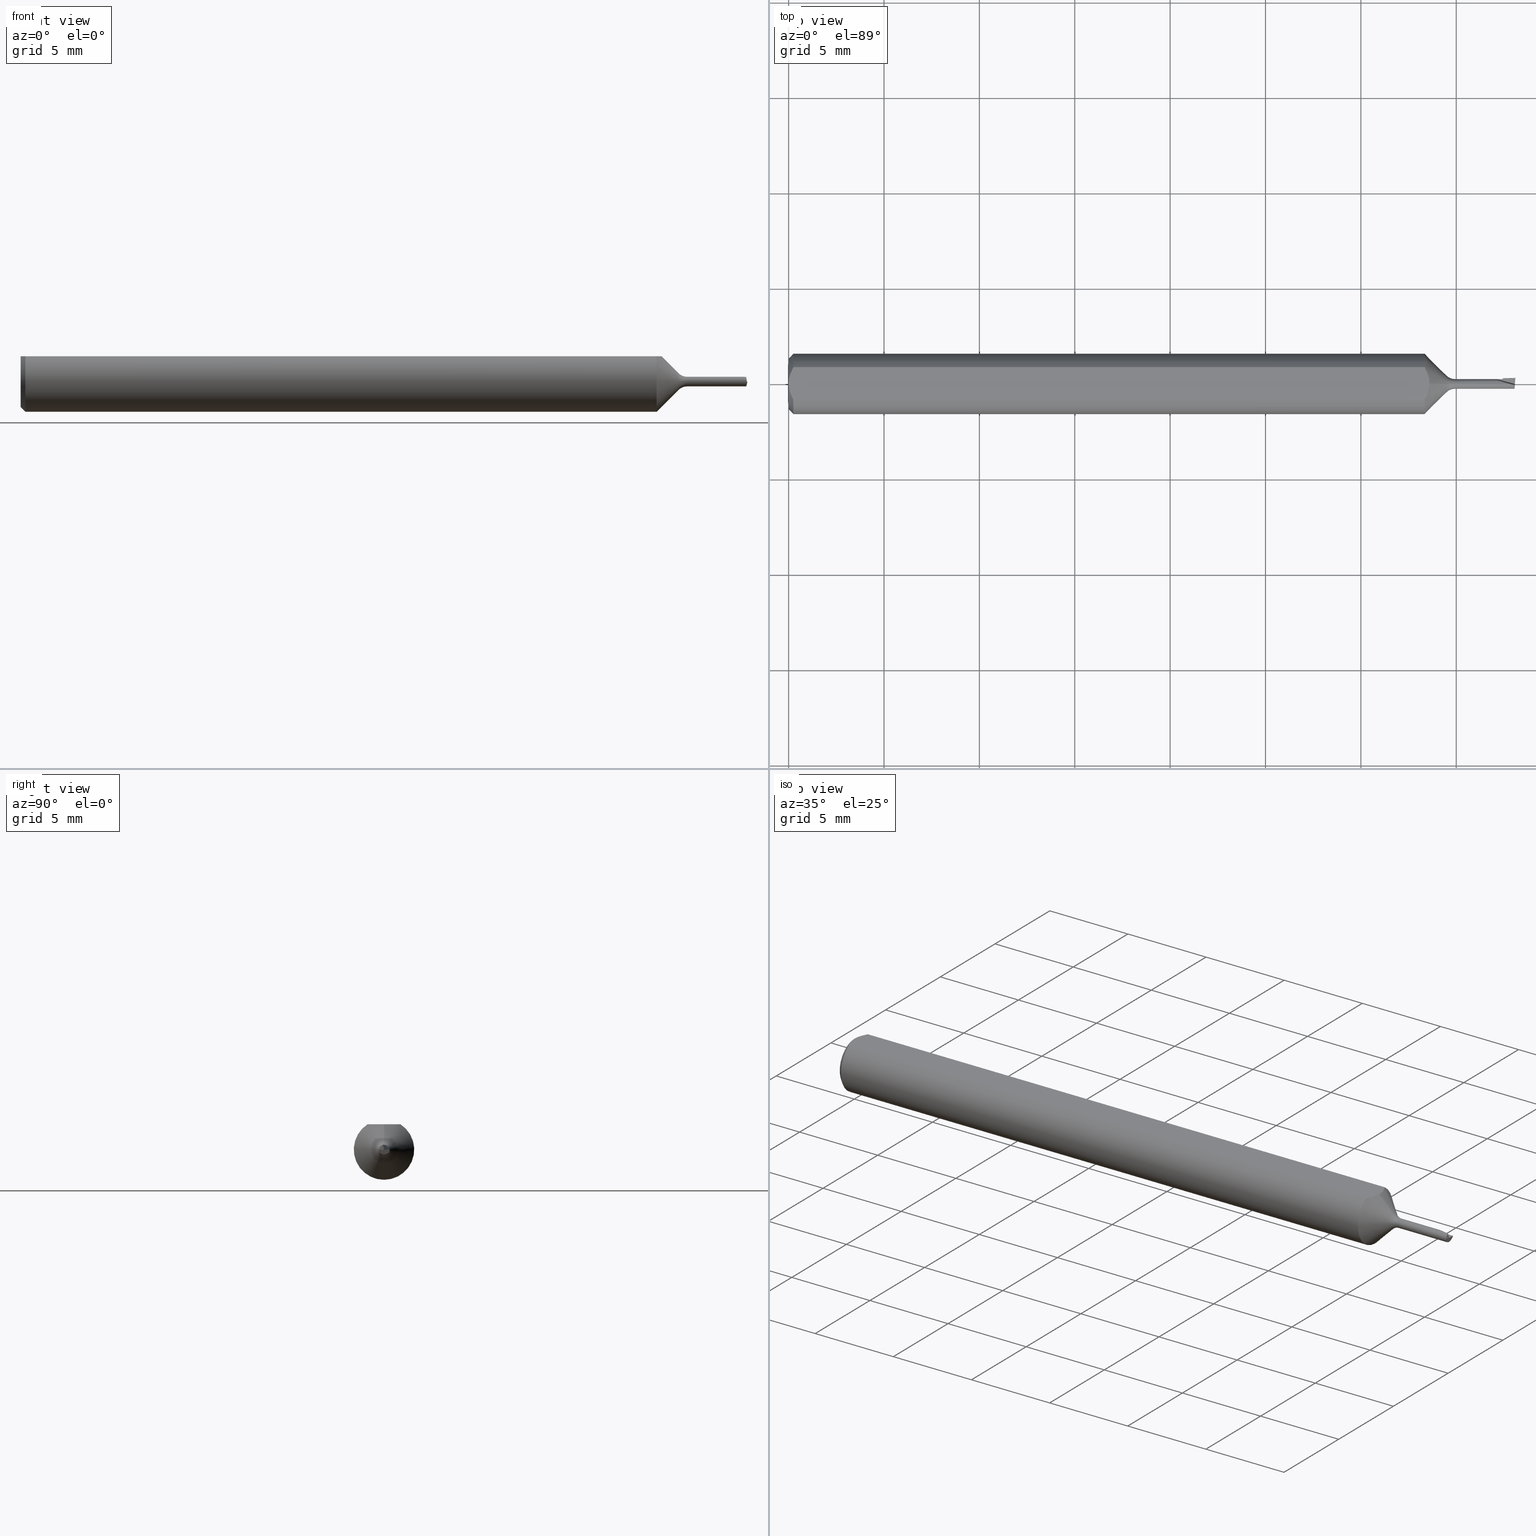
[diagram: canonical four-view strip — front | top / right | iso, engineering-drawing reading convention]
A machine part, canonical four-view strip (front | top / right | iso — engineering-drawing reading convention). The complete STEP part file that produces these views, byte-faithful:
ISO-10303-21;
HEADER;
FILE_DESCRIPTION (( 'STEP AP203' ),
    '1' );
FILE_NAME ('210010-MB025125.STEP',
    '2025-01-28T23:26:11',
    ( '' ),
    ( '' ),
    'SwSTEP 2.0',
    'SolidWorks 2024',
    '' );
FILE_SCHEMA (( 'CONFIG_CONTROL_DESIGN' ));
ENDSEC;

DATA;
#1 = FACE_OUTER_BOUND ( 'NONE', #426, .T. ) ;
#2 = CARTESIAN_POINT ( 'NONE',  ( 1.315496486667928844, 0.02862699489997218988, 0.05235000000000001458 ) ) ;
#3 = ORIENTED_EDGE ( 'NONE', *, *, #642, .T. ) ;
#4 = APPROVAL_STATUS ( 'not_yet_approved' ) ;
#5 = CARTESIAN_POINT ( 'NONE',  ( 1.375355339059327386, 0.000000000000000000, 0.000000000000000000 ) ) ;
#6 = DIRECTION ( 'NONE',  ( 0.000000000000000000, 0.000000000000000000, 1.000000000000000000 ) ) ;
#7 = ORIENTED_EDGE ( 'NONE', *, *, #299, .T. ) ;
#8 = CARTESIAN_POINT ( 'NONE',  ( 1.497349205165467767, -0.009999999999999967248, 0.004836342046113583856 ) ) ;
#9 = CARTESIAN_POINT ( 'NONE',  ( 0.009999999999999890921, 0.03386738844375217911, 0.05235000000000001458 ) ) ;
#10 = CARTESIAN_POINT ( 'NONE',  ( 1.312650000000000317, -0.03386738844375220686, 0.05235000000000000070 ) ) ;
#11 = FACE_OUTER_BOUND ( 'NONE', #289, .T. ) ;
#12 = VERTEX_POINT ( 'NONE', #434 ) ;
#13 = CC_DESIGN_PERSON_AND_ORGANIZATION_ASSIGNMENT ( #422, #379, ( #451 ) ) ;
#14 = DIRECTION ( 'NONE',  ( 0.1396943646708783127, 0.000000000000000000, 0.9901946699913101169 ) ) ;
#15 = DIRECTION ( 'NONE',  ( -1.000000000000000000, -0.000000000000000000, -0.000000000000000000 ) ) ;
#16 = DIRECTION ( 'NONE',  ( -1.000000000000000000, -0.000000000000000000, -0.000000000000000000 ) ) ;
#17 = ORIENTED_EDGE ( 'NONE', *, *, #626, .T. ) ;
#18 = CARTESIAN_POINT ( 'NONE',  ( 1.474000000000000199, 0.01181916603920113266, -1.428629915889650824E-18 ) ) ;
#19 = EDGE_CURVE ( 'NONE', #210, #480, #233, .T. ) ;
#20 = VECTOR ( 'NONE', #687, 39.37007874015748854 ) ;
#21 = ORIENTED_EDGE ( 'NONE', *, *, #619, .T. ) ;
#22 = CARTESIAN_POINT ( 'NONE',  ( 0.009999999999999890921, 0.03386738844375217911, 0.05235000000000001458 ) ) ;
#23 = EDGE_LOOP ( 'NONE', ( #584, #262, #693, #394, #237, #621 ) ) ;
#24 = DIRECTION ( 'NONE',  ( 0.000000000000000000, -0.4695970100586611129, -0.8828808799288643261 ) ) ;
#25 = CARTESIAN_POINT ( 'NONE',  ( 0.000000000000000000, 0.000000000000000000, 0.000000000000000000 ) ) ;
#26 = VECTOR ( 'NONE', #327, 39.37007874015748143 ) ;
#27 = ORIENTED_EDGE ( 'NONE', *, *, #299, .F. ) ;
#28 = DIRECTION ( 'NONE',  ( 0.9659258262890716429, -0.2588190451025078054, -0.000000000000000000 ) ) ;
#29 = ADVANCED_FACE ( 'NONE', ( #176 ), #53, .T. ) ;
#30 = CIRCLE ( 'NONE', #212, 0.01000000000000000021 ) ;
#31 = APPROVAL_PERSON_ORGANIZATION ( #637, #509, #473 ) ;
#32 = FACE_OUTER_BOUND ( 'NONE', #100, .T. ) ;
#33 = VERTEX_POINT ( 'NONE', #378 ) ;
#34 = LINE ( 'NONE', #139, #485 ) ;
#35 = CC_DESIGN_PERSON_AND_ORGANIZATION_ASSIGNMENT ( #268, #690, ( #101 ) ) ;
#36 = CARTESIAN_POINT ( 'NONE',  ( 1.357677669529663733, 0.000000000000000000, 0.000000000000000000 ) ) ;
#37 = ORIENTED_EDGE ( 'NONE', *, *, #177, .T. ) ;
#38 = APPLICATION_CONTEXT ( 'configuration controlled 3d designs of mechanical parts and assemblies' ) ;
#39 = DIRECTION ( 'NONE',  ( 0.000000000000000000, 0.000000000000000000, 1.000000000000000000 ) ) ;
#40 = DIRECTION ( 'NONE',  ( -1.000000000000000000, -0.000000000000000000, -0.000000000000000000 ) ) ;
#41 = ORIENTED_EDGE ( 'NONE', *, *, #116, .T. ) ;
#42 = DATE_AND_TIME ( #529, #124 ) ;
#43 = AXIS2_PLACEMENT_3D ( 'NONE', #66, #433, #115 ) ;
#44 = CARTESIAN_POINT ( 'NONE',  ( 1.317985229763168231, -0.02321262084120600047, 0.05235000000000001458 ) ) ;
#45 = EDGE_CURVE ( 'NONE', #618, #501, #60, .T. ) ;
#46 = ORIENTED_EDGE ( 'NONE', *, *, #668, .T. ) ;
#47 = PERSON_AND_ORGANIZATION ( #88, #634 ) ;
#48 = FACE_OUTER_BOUND ( 'NONE', #146, .T. ) ;
#49 = ORIENTED_EDGE ( 'NONE', *, *, #439, .T. ) ;
#50 = APPLICATION_PROTOCOL_DEFINITION ( 'international standard', 'config_control_design', 1994, #445 ) ;
#51 = DIRECTION ( 'NONE',  ( 0.000000000000000000, 0.000000000000000000, -1.000000000000000000 ) ) ;
#52 = ORIENTED_EDGE ( 'NONE', *, *, #240, .T. ) ;
#53 = CONICAL_SURFACE ( 'NONE', #570, 0.01732233047033639867, 0.7853981633974508325 ) ;
#54 = EDGE_CURVE ( 'NONE', #410, #135, #683, .T. ) ;
#55 = CARTESIAN_POINT ( 'NONE',  ( 1.475064240996841747, 0.009719467379827602393, -0.003999999999999994012 ) ) ;
#56 = ADVANCED_FACE ( 'NONE', ( #120 ), #386, .F. ) ;
#57 = AXIS2_PLACEMENT_3D ( 'NONE', #429, #648, #270 ) ;
#58 = CARTESIAN_POINT ( 'NONE',  ( 1.494346893718513147, -0.001537992003958231924, 0.009911099520036877747 ) ) ;
#59 =( NAMED_UNIT ( * ) PLANE_ANGLE_UNIT ( ) SI_UNIT ( $, .RADIAN. ) );
#60 =( BOUNDED_CURVE ( )  B_SPLINE_CURVE ( 3, ( #385, #58, #655, #231 ),
 .UNSPECIFIED., .F., .F. ) 
 B_SPLINE_CURVE_WITH_KNOTS ( ( 4, 4 ),
 ( 4.752031574225333621, 4.982986395506907584 ),
 .UNSPECIFIED. ) 
 CURVE ( )  GEOMETRIC_REPRESENTATION_ITEM ( )  RATIONAL_B_SPLINE_CURVE ( ( 1.000000000000000000, 0.9955599265456920310, 0.9955599265456920310, 1.000000000000000000 ) ) 
 REPRESENTATION_ITEM ( '' )  );
#61 = CIRCLE ( 'NONE', #613, 0.05235000000000033377 ) ;
#62 = CARTESIAN_POINT ( 'NONE',  ( 0.000000000000000000, -0.03386738844375220686, 0.05235000000000000070 ) ) ;
#63 = CARTESIAN_POINT ( 'NONE',  ( 1.357677669529663733, 0.000000000000000000, 0.000000000000000000 ) ) ;
#64 = CARTESIAN_POINT ( 'NONE',  ( 1.497332805726873994, -0.002289070968673543108, 0.009734482734094100642 ) ) ;
#65 = CARTESIAN_POINT ( 'NONE',  ( 1.375355339059327386, 0.000000000000000000, 0.000000000000000000 ) ) ;
#66 = CARTESIAN_POINT ( 'NONE',  ( 1.357677669529663733, 0.000000000000000000, 0.000000000000000000 ) ) ;
#67 = FACE_OUTER_BOUND ( 'NONE', #79, .T. ) ;
#68 = AXIS2_PLACEMENT_3D ( 'NONE', #71, #167, #332 ) ;
#69 = ADVANCED_FACE ( 'NONE', ( #67 ), #444, .T. ) ;
#70 = AXIS2_PLACEMENT_3D ( 'NONE', #140, #40, #530 ) ;
#71 = CARTESIAN_POINT ( 'NONE',  ( 1.500000000000000222, 0.06235000000000000264, 0.05235000000000001458 ) ) ;
#72 = CARTESIAN_POINT ( 'NONE',  ( -1.099542139246802830E-15, 0.005954997531773979953, 0.05235000000000002152 ) ) ;
#73 = PLANE ( 'NONE',  #691 ) ;
#74 = LINE ( 'NONE', #238, #121 ) ;
#75 = EDGE_CURVE ( 'NONE', #480, #406, #555, .T. ) ;
#76 = DIRECTION ( 'NONE',  ( 3.169619151431608402E-17, 1.182917971378675018E-16, -1.000000000000000000 ) ) ;
#77 = ORIENTED_EDGE ( 'NONE', *, *, #148, .F. ) ;
#78 = DIRECTION ( 'NONE',  ( 0.01228933283106314021, -0.4693106866066366623, -0.8829475928589275435 ) ) ;
#79 = EDGE_LOOP ( 'NONE', ( #627, #117, #563, #91 ) ) ;
#80 = CARTESIAN_POINT ( 'NONE',  ( 1.497879924029892118, 0.003420201433256736361, -0.009396926207859094410 ) ) ;
#81 = ORIENTED_EDGE ( 'NONE', *, *, #169, .F. ) ;
#82 = DIRECTION ( 'NONE',  ( -0.7071067811865457964, 0.000000000000000000, 0.7071067811865493491 ) ) ;
#83 = DIRECTION ( 'NONE',  ( 0.1396943646708921627, 0.000000000000000000, -0.9901946699913082295 ) ) ;
#84 = ORIENTED_EDGE ( 'NONE', *, *, #395, .T. ) ;
#85 = FACE_OUTER_BOUND ( 'NONE', #681, .T. ) ;
#86 = AXIS2_PLACEMENT_3D ( 'NONE', #377, #651, #381 ) ;
#87 = VECTOR ( 'NONE', #78, 39.37007874015748143 ) ;
#88 = PERSON ( 'UNSPECIFIED', 'UNSPECIFIED', 'UNSPECIFIED', ('UNSPECIFIED'), ('UNSPECIFIED'), ('UNSPECIFIED') ) ;
#89 = LINE ( 'NONE', #301, #254 ) ;
#90 = VECTOR ( 'NONE', #411, 39.37007874015748143 ) ;
#91 = ORIENTED_EDGE ( 'NONE', *, *, #75, .F. ) ;
#92 = LINE ( 'NONE', #567, #392 ) ;
#93 = DIRECTION ( 'NONE',  ( 0.000000000000000000, 0.000000000000000000, 1.000000000000000000 ) ) ;
#94 = ORIENTED_EDGE ( 'NONE', *, *, #495, .T. ) ;
#95 = LINE ( 'NONE', #408, #300 ) ;
#96 = EDGE_CURVE ( 'NONE', #191, #215, #325, .T. ) ;
#97 = CARTESIAN_POINT ( 'NONE',  ( 1.475008566875612104, 0.01184557629230354250, -6.250867017093194023E-19 ) ) ;
#98 = EDGE_LOOP ( 'NONE', ( #285, #469, #472 ) ) ;
#99 = CARTESIAN_POINT ( 'NONE',  ( 0.009999999999999887451, 0.000000000000000000, 0.000000000000000000 ) ) ;
#100 = EDGE_LOOP ( 'NONE', ( #7, #361, #373, #461 ) ) ;
#101 = PRODUCT ( '210010-MB025125', '210010-MB025125', '', ( #419 ) ) ;
#102 =( CONVERSION_BASED_UNIT ( 'INCH', #470 ) LENGTH_UNIT ( ) NAMED_UNIT ( #372 ) );
#103 = DIRECTION ( 'NONE',  ( -1.000000000000000000, -0.000000000000000000, -0.000000000000000000 ) ) ;
#104 = VERTEX_POINT ( 'NONE', #545 ) ;
#105 = ADVANCED_FACE ( 'NONE', ( #11 ), #331, .T. ) ;
#106 = COORDINATED_UNIVERSAL_TIME_OFFSET ( 8, 0, .BEHIND. ) ;
#107 = DIRECTION ( 'NONE',  ( -1.000000000000000000, -0.000000000000000000, -0.000000000000000000 ) ) ;
#108 = ORIENTED_EDGE ( 'NONE', *, *, #313, .F. ) ;
#109 = PERSON_AND_ORGANIZATION_ROLE ( 'classification_officer' ) ;
#110 = CARTESIAN_POINT ( 'NONE',  ( 1.488514992868773312, 0.000000000000000000, 0.01000000000000000888 ) ) ;
#111 = CARTESIAN_POINT ( 'NONE',  ( 0.01000000000000840841, -0.03386738844395137393, 0.05235000000000001458 ) ) ;
#112 = CIRCLE ( 'NONE', #286, 0.01181916603920113266 ) ;
#113 = DIRECTION ( 'NONE',  ( 0.000000000000000000, 0.000000000000000000, 1.000000000000000000 ) ) ;
#114 = ORIENTED_EDGE ( 'NONE', *, *, #75, .T. ) ;
#115 = DIRECTION ( 'NONE',  ( 0.000000000000000000, 0.000000000000000000, 1.000000000000000000 ) ) ;
#116 = EDGE_CURVE ( 'NONE', #154, #247, #382, .T. ) ;
#117 = ORIENTED_EDGE ( 'NONE', *, *, #169, .T. ) ;
#118 = VECTOR ( 'NONE', #295, 39.37007874015748854 ) ;
#119 = CARTESIAN_POINT ( 'NONE',  ( 1.497205091167248536, -0.01000000000000003664, -0.005857864376269031510 ) ) ;
#120 = FACE_OUTER_BOUND ( 'NONE', #370, .T. ) ;
#121 = VECTOR ( 'NONE', #615, 39.37007874015748854 ) ;
#122 = ORIENTED_EDGE ( 'NONE', *, *, #374, .T. ) ;
#123 = ADVANCED_BREP_SHAPE_REPRESENTATION ( '210010-MB025125', ( #162, #235 ), #203 ) ;
#124 = LOCAL_TIME ( 15, 26, 11.00000000000000000, #543 ) ;
#125 = CARTESIAN_POINT ( 'NONE',  ( 1.498906391705925989, 2.409961794675913428E-34, -2.037302545896006301E-18 ) ) ;
#126 = PLANE ( 'NONE',  #703 ) ;
#127 = ORIENTED_EDGE ( 'NONE', *, *, #477, .T. ) ;
#128 = FACE_OUTER_BOUND ( 'NONE', #441, .T. ) ;
#129 = ORIENTED_EDGE ( 'NONE', *, *, #376, .T. ) ;
#130 = CARTESIAN_POINT ( 'NONE',  ( 1.499999999999999556, 0.01249999999999998161, -5.335640612625514099E-19 ) ) ;
#131 = CIRCLE ( 'NONE', #43, 0.01732233047033639867 ) ;
#132 = EDGE_LOOP ( 'NONE', ( #337, #528, #452, #142 ) ) ;
#133 = EDGE_CURVE ( 'NONE', #592, #257, #316, .T. ) ;
#134 = CARTESIAN_POINT ( 'NONE',  ( 1.500000000000000222, 0.000000000000000000, 0.000000000000000000 ) ) ;
#135 = VERTEX_POINT ( 'NONE', #225 ) ;
#136 = CARTESIAN_POINT ( 'NONE',  ( 1.497879924029892118, 0.003420201433256736361, -0.009396926207859094410 ) ) ;
#137 = DIRECTION ( 'NONE',  ( 1.000000000000000000, 0.000000000000000000, 0.000000000000000000 ) ) ;
#138 = ORIENTED_EDGE ( 'NONE', *, *, #477, .F. ) ;
#139 = CARTESIAN_POINT ( 'NONE',  ( 1.357677669529663733, 0.000000000000000000, 0.01732233047033639867 ) ) ;
#140 = CARTESIAN_POINT ( 'NONE',  ( 1.312650000000000317, 0.000000000000000000, 0.000000000000000000 ) ) ;
#141 = CLOSED_SHELL ( 'NONE', ( #69, #29, #562, #553, #158, #288, #208, #565, #56, #105, #425, #447, #178, #197, #271, #695, #505, #504, #578, #222, #436 ) ) ;
#142 = ORIENTED_EDGE ( 'NONE', *, *, #45, .F. ) ;
#143 = CARTESIAN_POINT ( 'NONE',  ( 1.461547246597183491, 0.01000000000000000715, -2.038527192695151818E-18 ) ) ;
#144 = CIRCLE ( 'NONE', #701, 0.06235000000000000264 ) ;
#145 = CARTESIAN_POINT ( 'NONE',  ( 1.475030790391606894, 0.01099689445631413416, -0.005133527559675592905 ) ) ;
#146 = EDGE_LOOP ( 'NONE', ( #685, #37, #49, #253, #575, #17 ) ) ;
#147 = PLANE ( 'NONE',  #576 ) ;
#148 = EDGE_CURVE ( 'NONE', #664, #339, #242, .T. ) ;
#149 = CARTESIAN_POINT ( 'NONE',  ( 1.322650000000000547, -0.005923004380652506853, 0.05235000000000002152 ) ) ;
#150 = ORIENTED_EDGE ( 'NONE', *, *, #626, .F. ) ;
#151 = APPROVAL_STATUS ( 'not_yet_approved' ) ;
#152 = PRODUCT_DEFINITION_SHAPE ( 'NONE', 'NONE',  #451 ) ;
#153 = DIRECTION ( 'NONE',  ( -0.000000000000000000, 1.000000000000000000, 1.182917971378675018E-16 ) ) ;
#154 = VERTEX_POINT ( 'NONE', #561 ) ;
#155 = DATE_AND_TIME ( #260, #390 ) ;
#156 = CIRCLE ( 'NONE', #70, 0.06235000000000000264 ) ;
#157 = DIRECTION ( 'NONE',  ( -0.1634519077459325731, -0.4666144205109024057, -0.8692263551144143729 ) ) ;
#158 = ADVANCED_FACE ( 'NONE', ( #347 ), #291, .F. ) ;
#159 = ORIENTED_EDGE ( 'NONE', *, *, #669, .T. ) ;
#160 = DATE_AND_TIME ( #432, #675 ) ;
#161 = FACE_OUTER_BOUND ( 'NONE', #450, .T. ) ;
#162 = MANIFOLD_SOLID_BREP ( 'Cut-Extrude8', #141 ) ;
#163 = ORIENTED_EDGE ( 'NONE', *, *, #310, .F. ) ;
#164 = COORDINATED_UNIVERSAL_TIME_OFFSET ( 8, 0, .BEHIND. ) ;
#165 = CARTESIAN_POINT ( 'NONE',  ( 0.004679365186825695105, -0.02325953974091124477, 0.05235000000000000764 ) ) ;
#166 = AXIS2_PLACEMENT_3D ( 'NONE', #5, #488, #113 ) ;
#167 = DIRECTION ( 'NONE',  ( 0.000000000000000000, 0.000000000000000000, -1.000000000000000000 ) ) ;
#168 = CARTESIAN_POINT ( 'NONE',  ( 0.000000000000000000, 0.000000000000000000, 0.05235000000000033377 ) ) ;
#169 = EDGE_CURVE ( 'NONE', #559, #33, #185, .T. ) ;
#170 = DIRECTION ( 'NONE',  ( 0.000000000000000000, 0.000000000000000000, -1.000000000000000000 ) ) ;
#171 = CARTESIAN_POINT ( 'NONE',  ( 1.321578966334656879, 0.01191455685703347520, 0.05235000000000001458 ) ) ;
#172 = CARTESIAN_POINT ( 'NONE',  ( 1.475064240996841747, 0.009719467379827602393, -0.003999999999999994012 ) ) ;
#173 = CARTESIAN_POINT ( 'NONE',  ( 0.000000000000000000, 0.000000000000000000, 0.05235000000000033377 ) ) ;
#174 = VECTOR ( 'NONE', #514, 39.37007874015748143 ) ;
#175 = CARTESIAN_POINT ( 'NONE',  ( 1.474000000000000199, 0.000000000000000000, 0.000000000000000000 ) ) ;
#176 = FACE_OUTER_BOUND ( 'NONE', #349, .T. ) ;
#177 = EDGE_CURVE ( 'NONE', #283, #524, #294, .T. ) ;
#178 = ADVANCED_FACE ( 'NONE', ( #128 ), #333, .T. ) ;
#179 = CC_DESIGN_APPROVAL ( #686, ( #451 ) ) ;
#180 = AXIS2_PLACEMENT_3D ( 'NONE', #387, #458, #14 ) ;
#181 = CARTESIAN_POINT ( 'NONE',  ( 1.312650000000000317, 0.000000000000000000, 0.000000000000000000 ) ) ;
#182 = ORIENTED_EDGE ( 'NONE', *, *, #330, .T. ) ;
#183 = DIRECTION ( 'NONE',  ( 0.000000000000000000, 0.000000000000000000, -1.000000000000000000 ) ) ;
#184 = ORIENTED_EDGE ( 'NONE', *, *, #628, .T. ) ;
#185 = LINE ( 'NONE', #556, #174 ) ;
#186 = VECTOR ( 'NONE', #209, 39.37007874015748854 ) ;
#187 = EDGE_LOOP ( 'NONE', ( #581, #220, #352, #194, #494, #259 ) ) ;
#188 = LINE ( 'NONE', #465, #356 ) ;
#189 = EDGE_CURVE ( 'NONE', #257, #404, #344, .T. ) ;
#190 = DIRECTION ( 'NONE',  ( 0.000000000000000000, 1.000000000000000000, 1.182917971378675018E-16 ) ) ;
#191 = VERTEX_POINT ( 'NONE', #568 ) ;
#192 = DIRECTION ( 'NONE',  ( 1.000000000000000000, 0.000000000000000000, 0.000000000000000000 ) ) ;
#193 = CARTESIAN_POINT ( 'NONE',  ( 1.474000000000000199, 0.009340465249144246085, -0.007242126399872770084 ) ) ;
#194 = ORIENTED_EDGE ( 'NONE', *, *, #45, .T. ) ;
#195 = CARTESIAN_POINT ( 'NONE',  ( 1.474000000000000199, 0.01000000000000000021, 0.000000000000000000 ) ) ;
#196 = CARTESIAN_POINT ( 'NONE',  ( 1.312650000000000317, 0.03386738844375220686, 0.05235000000000000070 ) ) ;
#197 = ADVANCED_FACE ( 'NONE', ( #391 ), #564, .F. ) ;
#198 = ORIENTED_EDGE ( 'NONE', *, *, #310, .T. ) ;
#199 =( BOUNDED_CURVE ( )  B_SPLINE_CURVE ( 3, ( #97, #305, #145, #249 ),
 .UNSPECIFIED., .F., .F. ) 
 B_SPLINE_CURVE_WITH_KNOTS ( ( 4, 4 ),
 ( 3.141592653589793116, 3.796950343658093807 ),
 .UNSPECIFIED. ) 
 CURVE ( )  GEOMETRIC_REPRESENTATION_ITEM ( )  RATIONAL_B_SPLINE_CURVE ( ( 1.000000000000000000, 0.9645279656092725640, 0.9645279656092725640, 1.000000000000000000 ) ) 
 REPRESENTATION_ITEM ( '' )  );
#200 = DIRECTION ( 'NONE',  ( -1.000000000000000000, -0.000000000000000000, -0.000000000000000000 ) ) ;
#201 = CARTESIAN_POINT ( 'NONE',  ( 1.475064240996841747, 0.009719467379827602393, -0.003999999999999994012 ) ) ;
#202 = ORIENTED_EDGE ( 'NONE', *, *, #177, .F. ) ;
#203 =( GEOMETRIC_REPRESENTATION_CONTEXT ( 3 ) GLOBAL_UNCERTAINTY_ASSIGNED_CONTEXT ( ( #499 ) ) GLOBAL_UNIT_ASSIGNED_CONTEXT ( ( #102, #59, #315 ) ) REPRESENTATION_CONTEXT ( 'NONE', 'WORKASPACE' ) );
#204 = DATE_AND_TIME ( #537, #550 ) ;
#205 = DIRECTION ( 'NONE',  ( 0.000000000000000000, -1.224646799147353207E-16, 1.000000000000000000 ) ) ;
#206 = ORIENTED_EDGE ( 'NONE', *, *, #439, .F. ) ;
#207 = CARTESIAN_POINT ( 'NONE',  ( 0.000000000000000000, 0.000000000000000000, 0.000000000000000000 ) ) ;
#208 = ADVANCED_FACE ( 'NONE', ( #32 ), #423, .T. ) ;
#209 = DIRECTION ( 'NONE',  ( 0.01850989765925682706, -0.7068644733530197177, -0.7071067811865487940 ) ) ;
#210 = VERTEX_POINT ( 'NONE', #22 ) ;
#211 = PERSON_AND_ORGANIZATION ( #88, #634 ) ;
#212 = AXIS2_PLACEMENT_3D ( 'NONE', #614, #338, #403 ) ;
#213 = CARTESIAN_POINT ( 'NONE',  ( 1.497077098617417779, -0.006996999783080056802, 0.008627409716860741720 ) ) ;
#214 = CC_DESIGN_APPROVAL ( #407, ( #520 ) ) ;
#215 = VERTEX_POINT ( 'NONE', #399 ) ;
#216 = CYLINDRICAL_SURFACE ( 'NONE', #57, 0.01000000000000000888 ) ;
#217 = CARTESIAN_POINT ( 'NONE',  ( -1.070637973615595603E-15, -0.005965286321711177862, 0.05235000000000002152 ) ) ;
#218 = APPROVAL_ROLE ( '' ) ;
#219 = CARTESIAN_POINT ( 'NONE',  ( 1.497495614927334184, 1.224646799147354347E-18, -0.01000000000000000888 ) ) ;
#220 = ORIENTED_EDGE ( 'NONE', *, *, #453, .T. ) ;
#221 = EDGE_CURVE ( 'NONE', #104, #664, #30, .T. ) ;
#222 = ADVANCED_FACE ( 'NONE', ( #666 ), #126, .T. ) ;
#223 = VECTOR ( 'NONE', #153, 39.37007874015748143 ) ;
#224 = FACE_OUTER_BOUND ( 'NONE', #702, .T. ) ;
#225 = CARTESIAN_POINT ( 'NONE',  ( 1.322650000000000103, 8.761334592606603512E-20, 0.05235000000000001458 ) ) ;
#226 = CARTESIAN_POINT ( 'NONE',  ( 0.009999999999999887451, 0.000000000000000000, 0.000000000000000000 ) ) ;
#227 = ORIENTED_EDGE ( 'NONE', *, *, #453, .F. ) ;
#228 = ORIENTED_EDGE ( 'NONE', *, *, #54, .T. ) ;
#229 = EDGE_CURVE ( 'NONE', #266, #539, #336, .T. ) ;
#230 = FACE_OUTER_BOUND ( 'NONE', #557, .T. ) ;
#231 = CARTESIAN_POINT ( 'NONE',  ( 1.488514992868773312, 0.000000000000000000, 0.01000000000000000888 ) ) ;
#232 = CARTESIAN_POINT ( 'NONE',  ( 1.498031505070666292, -0.009999999999999984596, 7.403996226185250492E-17 ) ) ;
#233 = B_SPLINE_CURVE_WITH_KNOTS ( 'NONE', 3,
 ( #9, #438, #503, #384, #72, #173 ),
 .UNSPECIFIED., .F., .F.,
 ( 4, 2, 4 ),
 ( 0.0009229516234078821539, 0.001371626545108044996, 0.001820301466808207621 ),
 .UNSPECIFIED. ) ;
#234 = ORIENTED_EDGE ( 'NONE', *, *, #495, .F. ) ;
#235 = AXIS2_PLACEMENT_3D ( 'NONE', #207, #640, #487 ) ;
#236 = CARTESIAN_POINT ( 'NONE',  ( 1.560200597524541877, 0.003420201433256736361, -0.009396926207859096145 ) ) ;
#237 = ORIENTED_EDGE ( 'NONE', *, *, #374, .F. ) ;
#238 = CARTESIAN_POINT ( 'NONE',  ( 1.475008566875612104, 0.01184557629230354250, -6.250867017093194023E-19 ) ) ;
#239 = ORIENTED_EDGE ( 'NONE', *, *, #96, .T. ) ;
#240 = EDGE_CURVE ( 'NONE', #266, #278, #74, .T. ) ;
#241 = PLANE ( 'NONE',  #180 ) ;
#242 = LINE ( 'NONE', #670, #118 ) ;
#243 = EDGE_LOOP ( 'NONE', ( #77, #431, #636, #46 ) ) ;
#244 = AXIS2_PLACEMENT_3D ( 'NONE', #134, #396, #183 ) ;
#245 = CARTESIAN_POINT ( 'NONE',  ( 1.497332805726873994, -0.002289070968673543108, 0.009734482734094100642 ) ) ;
#246 = DIRECTION ( 'NONE',  ( 0.9864997997699056498, -0.08630754905044750458, 0.1391731009600657154 ) ) ;
#247 = VERTEX_POINT ( 'NONE', #232 ) ;
#248 = DIRECTION ( 'NONE',  ( 0.000000000000000000, 0.000000000000000000, -1.000000000000000000 ) ) ;
#249 = CARTESIAN_POINT ( 'NONE',  ( 1.475072872483624620, 0.009389844198154971219, -0.007224153932233516595 ) ) ;
#250 = ORIENTED_EDGE ( 'NONE', *, *, #189, .T. ) ;
#251 = DIRECTION ( 'NONE',  ( -1.000000000000000000, -0.000000000000000000, -0.000000000000000000 ) ) ;
#252 = DIRECTION ( 'NONE',  ( 0.000000000000000000, 0.000000000000000000, 1.000000000000000000 ) ) ;
#253 = ORIENTED_EDGE ( 'NONE', *, *, #416, .T. ) ;
#254 = VECTOR ( 'NONE', #597, 39.37007874015748854 ) ;
#255 = DATE_TIME_ROLE ( 'classification_date' ) ;
#256 = DIRECTION ( 'NONE',  ( -1.000000000000000000, -0.000000000000000000, -0.000000000000000000 ) ) ;
#257 = VERTEX_POINT ( 'NONE', #284 ) ;
#258 = CARTESIAN_POINT ( 'NONE',  ( 1.022644258787187121, 2.026693161858212697E-33, -1.713299832190501908E-17 ) ) ;
#259 = ORIENTED_EDGE ( 'NONE', *, *, #468, .F. ) ;
#260 = CALENDAR_DATE ( 2025, 28, 1 ) ;
#261 = CARTESIAN_POINT ( 'NONE',  ( 0.000000000000000000, 0.000000000000000000, 0.000000000000000000 ) ) ;
#262 = ORIENTED_EDGE ( 'NONE', *, *, #313, .T. ) ;
#263 = TOROIDAL_SURFACE ( 'NONE', #705, 0.03500000000000000333, 0.02499999999999998404 ) ;
#264 = AXIS2_PLACEMENT_3D ( 'NONE', #25, #137, #622 ) ;
#265 = LINE ( 'NONE', #484, #388 ) ;
#266 = VERTEX_POINT ( 'NONE', #282 ) ;
#267 = VECTOR ( 'NONE', #359, 39.37007874015748143 ) ;
#268 = PERSON_AND_ORGANIZATION ( #88, #634 ) ;
#269 =( BOUNDED_CURVE ( )  B_SPLINE_CURVE ( 3, ( #219, #328, #119, #551 ),
 .UNSPECIFIED., .F., .F. ) 
 B_SPLINE_CURVE_WITH_KNOTS ( ( 4, 4 ),
 ( 5.728084607564624342, 7.298880934359524453 ),
 .UNSPECIFIED. ) 
 CURVE ( )  GEOMETRIC_REPRESENTATION_ITEM ( )  RATIONAL_B_SPLINE_CURVE ( ( 1.000000000000000000, 0.8047378541243641603, 0.8047378541243641603, 1.000000000000000000 ) ) 
 REPRESENTATION_ITEM ( '' )  );
#270 = DIRECTION ( 'NONE',  ( 0.000000000000000000, 0.000000000000000000, 1.000000000000000000 ) ) ;
#271 = ADVANCED_FACE ( 'NONE', ( #446 ), #287, .T. ) ;
#272 = VERTEX_POINT ( 'NONE', #18 ) ;
#273 = DIRECTION ( 'NONE',  ( 1.000000000000000000, 0.000000000000000000, 0.000000000000000000 ) ) ;
#274 = CARTESIAN_POINT ( 'NONE',  ( 0.001055043921644571291, -0.01186408073217194367, 0.05235000000000002152 ) ) ;
#275 = PLANE ( 'NONE',  #86 ) ;
#276 = CC_DESIGN_APPROVAL ( #509, ( #368 ) ) ;
#277 = CARTESIAN_POINT ( 'NONE',  ( 1.498562395451862983, 0.007342190873058609957, -0.006991571847983111057 ) ) ;
#278 = VERTEX_POINT ( 'NONE', #130 ) ;
#279 = EDGE_CURVE ( 'NONE', #266, #677, #199, .T. ) ;
#280 = PLANE ( 'NONE',  #673 ) ;
#281 = EDGE_LOOP ( 'NONE', ( #3, #41, #227, #309, #182, #400, #414 ) ) ;
#282 = CARTESIAN_POINT ( 'NONE',  ( 1.475008566875612104, 0.01184557629230354250, -6.250867017093194023E-19 ) ) ;
#283 = VERTEX_POINT ( 'NONE', #620 ) ;
#284 = CARTESIAN_POINT ( 'NONE',  ( 1.497495614927334184, 1.224646799147354347E-18, -0.01000000000000000888 ) ) ;
#285 = ORIENTED_EDGE ( 'NONE', *, *, #427, .T. ) ;
#286 = AXIS2_PLACEMENT_3D ( 'NONE', #175, #335, #577 ) ;
#287 = PLANE ( 'NONE',  #645 ) ;
#288 = ADVANCED_FACE ( 'NONE', ( #630 ), #591, .T. ) ;
#289 = EDGE_LOOP ( 'NONE', ( #532, #198, #184, #616, #202 ) ) ;
#290 = CARTESIAN_POINT ( 'NONE',  ( 1.474000000000000199, 0.009340465249144246085, -0.007242126399872770084 ) ) ;
#291 = PLANE ( 'NONE',  #607 ) ;
#292 = ORIENTED_EDGE ( 'NONE', *, *, #133, .T. ) ;
#293 = LINE ( 'NONE', #125, #267 ) ;
#294 = CIRCLE ( 'NONE', #478, 0.06235000000000000264 ) ;
#295 = DIRECTION ( 'NONE',  ( -0.000000000000000000, 0.9396926207859068736, 0.3420201433256727097 ) ) ;
#296 = ORIENTED_EDGE ( 'NONE', *, *, #279, .F. ) ;
#297 = CIRCLE ( 'NONE', #389, 0.01732233047033639867 ) ;
#298 = DIRECTION ( 'NONE',  ( 0.9996573249755575929, 0.02617694830785934068, 4.043793518691314298E-18 ) ) ;
#299 = EDGE_CURVE ( 'NONE', #272, #266, #357, .T. ) ;
#300 = VECTOR ( 'NONE', #401, 39.37007874015748143 ) ;
#301 = CARTESIAN_POINT ( 'NONE',  ( 1.497493713479360222, -0.002055904214353657979, 0.008738518617702212971 ) ) ;
#302 = ORIENTED_EDGE ( 'NONE', *, *, #536, .T. ) ;
#303 = LINE ( 'NONE', #525, #20 ) ;
#304 = CC_DESIGN_PERSON_AND_ORGANIZATION_ASSIGNMENT ( #375, #109, ( #368 ) ) ;
#305 = CARTESIAN_POINT ( 'NONE',  ( 1.475008566875612548, 0.01184557629230319729, -0.002636916370985600312 ) ) ;
#306 = ORIENTED_EDGE ( 'NONE', *, *, #376, .F. ) ;
#307 = APPROVAL_DATE_TIME ( #204, #686 ) ;
#308 = CARTESIAN_POINT ( 'NONE',  ( 1.560200597524541877, 0.003420201433256736361, -0.009396926207859096145 ) ) ;
#309 = ORIENTED_EDGE ( 'NONE', *, *, #133, .F. ) ;
#310 = EDGE_CURVE ( 'NONE', #343, #12, #297, .T. ) ;
#311 = AXIS2_PLACEMENT_3D ( 'NONE', #538, #471, #205 ) ;
#312 = LINE ( 'NONE', #643, #497 ) ;
#313 = EDGE_CURVE ( 'NONE', #592, #664, #527, .T. ) ;
#314 = ORIENTED_EDGE ( 'NONE', *, *, #221, .T. ) ;
#315 =( NAMED_UNIT ( * ) SI_UNIT ( $, .STERADIAN. ) SOLID_ANGLE_UNIT ( ) );
#316 =( BOUNDED_CURVE ( )  B_SPLINE_CURVE ( 3, ( #80, #518, #455, #449 ),
 .UNSPECIFIED., .F., .F. ) 
 B_SPLINE_CURVE_WITH_KNOTS ( ( 4, 4 ),
 ( 5.379018757165754394, 5.728084607564624342 ),
 .UNSPECIFIED. ) 
 CURVE ( )  GEOMETRIC_REPRESENTATION_ITEM ( )  RATIONAL_B_SPLINE_CURVE ( ( 1.000000000000000000, 0.9898718353414717175, 0.9898718353414717175, 1.000000000000000000 ) ) 
 REPRESENTATION_ITEM ( '' )  );
#317 = LINE ( 'NONE', #417, #456 ) ;
#318 = ORIENTED_EDGE ( 'NONE', *, *, #547, .F. ) ;
#319 = CARTESIAN_POINT ( 'NONE',  ( 0.000000000000000000, 0.000000000000000000, 0.000000000000000000 ) ) ;
#320 = DIRECTION ( 'NONE',  ( 0.000000000000000000, 0.000000000000000000, 1.000000000000000000 ) ) ;
#321 = AXIS2_PLACEMENT_3D ( 'NONE', #661, #595, #652 ) ;
#322 = APPLICATION_PROTOCOL_DEFINITION ( 'international standard', 'config_control_design', 1994, #38 ) ;
#323 = EDGE_CURVE ( 'NONE', #410, #283, #156, .T. ) ;
#324 = DIRECTION ( 'NONE',  ( 0.000000000000000000, -1.000000000000000000, 0.000000000000000000 ) ) ;
#325 = LINE ( 'NONE', #277, #641 ) ;
#326 = FACE_OUTER_BOUND ( 'NONE', #697, .T. ) ;
#327 = DIRECTION ( 'NONE',  ( -0.08715574274765515439, -0.9961946980917457672, -1.257401727142899397E-15 ) ) ;
#328 = CARTESIAN_POINT ( 'NONE',  ( 1.496983118201937968, -0.005857864376269073144, -0.01000000000000000715 ) ) ;
#329 = DIRECTION ( 'NONE',  ( 0.000000000000000000, 0.000000000000000000, 1.000000000000000000 ) ) ;
#330 = EDGE_CURVE ( 'NONE', #592, #215, #317, .T. ) ;
#331 = CONICAL_SURFACE ( 'NONE', #698, 0.01732233047033639867, 0.7853981633974508325 ) ;
#332 = DIRECTION ( 'NONE',  ( -1.000000000000000000, 0.000000000000000000, -0.000000000000000000 ) ) ;
#333 = CONICAL_SURFACE ( 'NONE', #264, 0.05235000000000033377, 0.7853981633974376209 ) ;
#334 = CARTESIAN_POINT ( 'NONE',  ( 1.317986180560402731, 0.02321045958865959949, 0.05235000000000003539 ) ) ;
#335 = DIRECTION ( 'NONE',  ( -1.000000000000000000, -0.000000000000000000, -0.000000000000000000 ) ) ;
#336 = LINE ( 'NONE', #506, #87 ) ;
#337 = ORIENTED_EDGE ( 'NONE', *, *, #427, .F. ) ;
#338 = DIRECTION ( 'NONE',  ( -1.000000000000000000, -0.000000000000000000, -0.000000000000000000 ) ) ;
#339 = VERTEX_POINT ( 'NONE', #193 ) ;
#340 = EDGE_CURVE ( 'NONE', #278, #191, #583, .T. ) ;
#341 = AXIS2_PLACEMENT_3D ( 'NONE', #371, #324, #549 ) ;
#342 = CARTESIAN_POINT ( 'NONE',  ( 1.403331571315833637, 0.02559884317846935348, -2.038527192695151818E-18 ) ) ;
#343 = VERTEX_POINT ( 'NONE', #363 ) ;
#344 = LINE ( 'NONE', #676, #519 ) ;
#345 = VERTEX_POINT ( 'NONE', #369 ) ;
#346 = CARTESIAN_POINT ( 'NONE',  ( 0.000000000000000000, 0.000000000000000000, 0.000000000000000000 ) ) ;
#347 = FACE_OUTER_BOUND ( 'NONE', #132, .T. ) ;
#348 = EDGE_CURVE ( 'NONE', #135, #524, #580, .T. ) ;
#349 = EDGE_LOOP ( 'NONE', ( #94, #418, #464, #228, #623 ) ) ;
#350 = DIRECTION ( 'NONE',  ( 0.000000000000000000, 0.000000000000000000, -1.000000000000000000 ) ) ;
#351 = DIRECTION ( 'NONE',  ( 0.9996573249755572599, 0.02617694830787354113, 3.478184828003759614E-17 ) ) ;
#352 = ORIENTED_EDGE ( 'NONE', *, *, #533, .F. ) ;
#353 = CIRCLE ( 'NONE', #572, 0.05235000000000033377 ) ;
#354 = AXIS2_PLACEMENT_3D ( 'NONE', #261, #420, #93 ) ;
#355 = LINE ( 'NONE', #624, #90 ) ;
#356 = VECTOR ( 'NONE', #28, 39.37007874015748854 ) ;
#357 = LINE ( 'NONE', #258, #610 ) ;
#358 = ORIENTED_EDGE ( 'NONE', *, *, #600, .T. ) ;
#359 = DIRECTION ( 'NONE',  ( -0.08715574274766543783, -0.9961946980917448791, -1.206041662501903291E-16 ) ) ;
#360 = DIRECTION ( 'NONE',  ( -1.000000000000000000, 0.000000000000000000, 0.000000000000000000 ) ) ;
#361 = ORIENTED_EDGE ( 'NONE', *, *, #279, .T. ) ;
#362 = EDGE_CURVE ( 'NONE', #658, #404, #531, .T. ) ;
#363 = CARTESIAN_POINT ( 'NONE',  ( 1.357677669529663733, 2.121373656427011777E-18, -0.01732233047033638826 ) ) ;
#364 = ORIENTED_EDGE ( 'NONE', *, *, #240, .F. ) ;
#365 = AXIS2_PLACEMENT_3D ( 'NONE', #474, #696, #573 ) ;
#366 = PERSON_AND_ORGANIZATION ( #88, #634 ) ;
#367 = VECTOR ( 'NONE', #157, 39.37007874015748854 ) ;
#368 = SECURITY_CLASSIFICATION ( '', '', #590 ) ;
#369 = CARTESIAN_POINT ( 'NONE',  ( 1.475191974093876590, 0.004841537202824807221, -0.008879602294838463000 ) ) ;
#370 = EDGE_LOOP ( 'NONE', ( #306, #234, #127, #667 ) ) ;
#371 = CARTESIAN_POINT ( 'NONE',  ( 1.375355339059327386, 0.000000000000000000, 0.03500000000000000333 ) ) ;
#372 = DIMENSIONAL_EXPONENTS ( 1.000000000000000000, 0.000000000000000000, 0.000000000000000000, 0.000000000000000000, 0.000000000000000000, 0.000000000000000000, 0.000000000000000000 ) ;
#373 = ORIENTED_EDGE ( 'NONE', *, *, #679, .F. ) ;
#374 = EDGE_CURVE ( 'NONE', #345, #677, #312, .T. ) ;
#375 = PERSON_AND_ORGANIZATION ( #88, #634 ) ;
#376 = EDGE_CURVE ( 'NONE', #343, #404, #398, .T. ) ;
#377 = CARTESIAN_POINT ( 'NONE',  ( 1.474749168441001679, 0.02175160285413796357, 6.301673897183334484E-18 ) ) ;
#378 = CARTESIAN_POINT ( 'NONE',  ( 0.009999999999999887451, 0.000000000000000000, -0.06235000000000000264 ) ) ;
#379 = PERSON_AND_ORGANIZATION_ROLE ( 'creator' ) ;
#380 = CC_DESIGN_DATE_AND_TIME_ASSIGNMENT ( #42, #255, ( #368 ) ) ;
#381 = DIRECTION ( 'NONE',  ( 0.02617694830787364521, -0.9996573249755572599, 0.000000000000000000 ) ) ;
#382 = LINE ( 'NONE', #602, #26 ) ;
#383 = LINE ( 'NONE', #424, #662 ) ;
#384 = CARTESIAN_POINT ( 'NONE',  ( 0.001063697276021357847, 0.01189177144351693735, 0.05235000000000001458 ) ) ;
#385 = CARTESIAN_POINT ( 'NONE',  ( 1.497332805726873994, -0.002289070968673543108, 0.009734482734094100642 ) ) ;
#386 = TOROIDAL_SURFACE ( 'NONE', #540, 0.03500000000000000333, 0.02499999999999998404 ) ;
#387 = CARTESIAN_POINT ( 'NONE',  ( 1.495443673491786418, 0.01631007852008727402, -0.03465938240595503594 ) ) ;
#388 = VECTOR ( 'NONE', #544, 39.37007874015748143 ) ;
#389 = AXIS2_PLACEMENT_3D ( 'NONE', #36, #103, #479 ) ;
#390 = LOCAL_TIME ( 15, 26, 11.00000000000000000, #596 ) ;
#391 = FACE_OUTER_BOUND ( 'NONE', #491, .T. ) ;
#392 = VECTOR ( 'NONE', #298, 39.37007874015748854 ) ;
#393 = DIRECTION ( 'NONE',  ( -0.2499999999999876488, -0.9330127018922232951, -0.2588190451025187411 ) ) ;
#394 = ORIENTED_EDGE ( 'NONE', *, *, #679, .T. ) ;
#395 = EDGE_CURVE ( 'NONE', #539, #345, #684, .T. ) ;
#396 = DIRECTION ( 'NONE',  ( 1.000000000000000000, 0.000000000000000000, 0.000000000000000000 ) ) ;
#397 = ORIENTED_EDGE ( 'NONE', *, *, #526, .F. ) ;
#398 = CIRCLE ( 'NONE', #311, 0.02499999999999998404 ) ;
#399 = CARTESIAN_POINT ( 'NONE',  ( 1.498208848711434671, 0.005789348706122686948, -0.008534627119942928344 ) ) ;
#400 = ORIENTED_EDGE ( 'NONE', *, *, #96, .F. ) ;
#401 = DIRECTION ( 'NONE',  ( -1.000000000000000000, -0.000000000000000000, -0.000000000000000000 ) ) ;
#402 = EDGE_CURVE ( 'NONE', #104, #272, #413, .T. ) ;
#403 = DIRECTION ( 'NONE',  ( 0.000000000000000000, 0.000000000000000000, 1.000000000000000000 ) ) ;
#404 = VERTEX_POINT ( 'NONE', #585 ) ;
#405 = CARTESIAN_POINT ( 'NONE',  ( 1.315494783700979387, -0.02863013006906144076, 0.05235000000000002152 ) ) ;
#406 = VERTEX_POINT ( 'NONE', #625 ) ;
#407 = APPROVAL ( #4, 'UNSPECIFIED' ) ;
#408 = CARTESIAN_POINT ( 'NONE',  ( 0.000000000000000000, 0.000000000000000000, 0.01000000000000000888 ) ) ;
#409 = CYLINDRICAL_SURFACE ( 'NONE', #365, 0.06235000000000000264 ) ;
#410 = VERTEX_POINT ( 'NONE', #196 ) ;
#411 = DIRECTION ( 'NONE',  ( 1.000000000000000000, 0.000000000000000000, 0.000000000000000000 ) ) ;
#412 =( BOUNDED_CURVE ( )  B_SPLINE_CURVE ( 3, ( #64, #213, #8, #437 ),
 .UNSPECIFIED., .F., .F. ) 
 B_SPLINE_CURVE_WITH_KNOTS ( ( 4, 4 ),
 ( 5.959039428846304887, 7.298880934359608830 ),
 .UNSPECIFIED. ) 
 CURVE ( )  GEOMETRIC_REPRESENTATION_ITEM ( )  RATIONAL_B_SPLINE_CURVE ( ( 1.000000000000000000, 0.8559139165647859926, 0.8559139165647859926, 1.000000000000000000 ) ) 
 REPRESENTATION_ITEM ( '' )  );
#413 = LINE ( 'NONE', #638, #223 ) ;
#414 = ORIENTED_EDGE ( 'NONE', *, *, #340, .F. ) ;
#415 = APPROVAL_ROLE ( '' ) ;
#416 = EDGE_CURVE ( 'NONE', #406, #33, #586, .T. ) ;
#417 = CARTESIAN_POINT ( 'NONE',  ( 1.498922920255020497, 0.01093259500246332103, -0.006662638560575026743 ) ) ;
#418 = ORIENTED_EDGE ( 'NONE', *, *, #548, .T. ) ;
#419 = MECHANICAL_CONTEXT ( 'NONE', #445, 'mechanical' ) ;
#420 = DIRECTION ( 'NONE',  ( -1.000000000000000000, -0.000000000000000000, -0.000000000000000000 ) ) ;
#421 = ORIENTED_EDGE ( 'NONE', *, *, #19, .F. ) ;
#422 = PERSON_AND_ORGANIZATION ( #88, #634 ) ;
#423 = CONICAL_SURFACE ( 'NONE', #244, 0.01250000000000000069, 0.02617993877991533352 ) ;
#424 = CARTESIAN_POINT ( 'NONE',  ( 1.357677669529663733, 2.121373656427013318E-18, -0.01732233047033639867 ) ) ;
#425 = ADVANCED_FACE ( 'NONE', ( #48 ), #409, .T. ) ;
#426 = EDGE_LOOP ( 'NONE', ( #588, #512 ) ) ;
#427 = EDGE_CURVE ( 'NONE', #154, #618, #89, .T. ) ;
#428 = PERSON_AND_ORGANIZATION_ROLE ( 'design_supplier' ) ;
#429 = CARTESIAN_POINT ( 'NONE',  ( 0.000000000000000000, 0.000000000000000000, 0.000000000000000000 ) ) ;
#430 = PRODUCT_RELATED_PRODUCT_CATEGORY ( 'detail', '', ( #101 ) ) ;
#431 = ORIENTED_EDGE ( 'NONE', *, *, #221, .F. ) ;
#432 = CALENDAR_DATE ( 2025, 28, 1 ) ;
#433 = DIRECTION ( 'NONE',  ( -1.000000000000000000, -0.000000000000000000, -0.000000000000000000 ) ) ;
#434 = CARTESIAN_POINT ( 'NONE',  ( 1.357677669529663733, 0.000000000000000000, 0.01732233047033638826 ) ) ;
#435 = AXIS2_PLACEMENT_3D ( 'NONE', #99, #534, #51 ) ;
#436 = ADVANCED_FACE ( 'NONE', ( #498 ), #601, .F. ) ;
#437 = CARTESIAN_POINT ( 'NONE',  ( 1.498031505070666292, -0.009999999999999984596, 7.403996226185250492E-17 ) ) ;
#438 = CARTESIAN_POINT ( 'NONE',  ( 0.007185421074056205608, 0.02868573718286560742, 0.05235000000000002152 ) ) ;
#439 = EDGE_CURVE ( 'NONE', #524, #406, #493, .T. ) ;
#440 = DIRECTION ( 'NONE',  ( 0.000000000000000000, 0.000000000000000000, -1.000000000000000000 ) ) ;
#441 = EDGE_LOOP ( 'NONE', ( #81, #318, #421, #397 ) ) ;
#442 = CARTESIAN_POINT ( 'NONE',  ( 1.474357621608441971, 0.009356973802648067134, -0.007236117777786587983 ) ) ;
#443 = CARTESIAN_POINT ( 'NONE',  ( 1.322650000000000547, 0.005921610525265143775, 0.05235000000000002152 ) ) ;
#444 = CONICAL_SURFACE ( 'NONE', #321, 0.05235000000000033377, 0.7853981633974376209 ) ;
#445 = APPLICATION_CONTEXT ( 'configuration controlled 3d designs of mechanical parts and assemblies' ) ;
#446 = FACE_OUTER_BOUND ( 'NONE', #23, .T. ) ;
#447 = ADVANCED_FACE ( 'NONE', ( #1 ), #280, .F. ) ;
#448 = ORIENTED_EDGE ( 'NONE', *, *, #395, .F. ) ;
#449 = CARTESIAN_POINT ( 'NONE',  ( 1.497495614927334184, 1.224646799147354347E-18, -0.01000000000000000888 ) ) ;
#450 = EDGE_LOOP ( 'NONE', ( #292, #250, #521, #644, #358, #302, #314, #108 ) ) ;
#451 = PRODUCT_DEFINITION ( 'UNKNOWN', '', #520, #604 ) ;
#452 = ORIENTED_EDGE ( 'NONE', *, *, #600, .F. ) ;
#453 = EDGE_CURVE ( 'NONE', #257, #247, #269, .T. ) ;
#454 = AXIS2_PLACEMENT_3D ( 'NONE', #688, #256, #252 ) ;
#455 = CARTESIAN_POINT ( 'NONE',  ( 1.497597932866858494, 0.001169499400273570858, -0.01000000000000000888 ) ) ;
#456 = VECTOR ( 'NONE', #692, 39.37007874015748854 ) ;
#457 = ORIENTED_EDGE ( 'NONE', *, *, #402, .F. ) ;
#458 = DIRECTION ( 'NONE',  ( -0.9864997997699067600, 0.08630754905045757985, 0.1391731009600518099 ) ) ;
#459 = CC_DESIGN_DATE_AND_TIME_ASSIGNMENT ( #155, #476, ( #451 ) ) ;
#460 = DIRECTION ( 'NONE',  ( -1.000000000000000000, -0.000000000000000000, -0.000000000000000000 ) ) ;
#461 = ORIENTED_EDGE ( 'NONE', *, *, #668, .F. ) ;
#462 = FACE_OUTER_BOUND ( 'NONE', #281, .T. ) ;
#463 = CARTESIAN_POINT ( 'NONE',  ( 1.499282403470483471, 0.01045144092596800474, -0.003816130532802019127 ) ) ;
#464 = ORIENTED_EDGE ( 'NONE', *, *, #323, .F. ) ;
#465 = CARTESIAN_POINT ( 'NONE',  ( 1.403331571315833637, 0.02559884317846935348, -2.038527192695151818E-18 ) ) ;
#466 = DIRECTION ( 'NONE',  ( -0.02459927108112256247, 0.9394082624179304064, 0.3419166453438647890 ) ) ;
#467 = CIRCLE ( 'NONE', #166, 0.01000000000000001756 ) ;
#468 = EDGE_CURVE ( 'NONE', #404, #658, #467, .T. ) ;
#469 = ORIENTED_EDGE ( 'NONE', *, *, #533, .T. ) ;
#470 = LENGTH_MEASURE_WITH_UNIT ( LENGTH_MEASURE( 0.02539999999999999897 ), #599 );
#471 = DIRECTION ( 'NONE',  ( -0.000000000000000000, 1.000000000000000000, 1.224646799147353207E-16 ) ) ;
#472 = ORIENTED_EDGE ( 'NONE', *, *, #116, .F. ) ;
#473 = APPROVAL_ROLE ( '' ) ;
#474 = CARTESIAN_POINT ( 'NONE',  ( 0.000000000000000000, 0.000000000000000000, 0.000000000000000000 ) ) ;
#475 = ORIENTED_EDGE ( 'NONE', *, *, #468, .T. ) ;
#476 = DATE_TIME_ROLE ( 'creation_date' ) ;
#477 = EDGE_CURVE ( 'NONE', #12, #658, #560, .T. ) ;
#478 = AXIS2_PLACEMENT_3D ( 'NONE', #181, #16, #508 ) ;
#479 = DIRECTION ( 'NONE',  ( 0.000000000000000000, 0.000000000000000000, 1.000000000000000000 ) ) ;
#480 = VERTEX_POINT ( 'NONE', #603 ) ;
#481 = APPROVAL_STATUS ( 'not_yet_approved' ) ;
#482 = AXIS2_PLACEMENT_3D ( 'NONE', #55, #700, #657 ) ;
#483 = LOCAL_TIME ( 15, 26, 11.00000000000000000, #694 ) ;
#484 = CARTESIAN_POINT ( 'NONE',  ( 1.570448874441596937E-33, 0.01000000000000000888, -4.836400862806084343E-17 ) ) ;
#485 = VECTOR ( 'NONE', #82, 39.37007874015748143 ) ;
#486 = CARTESIAN_POINT ( 'NONE',  ( 1.322650000000000103, 8.761334592606603512E-20, 0.05235000000000001458 ) ) ;
#487 = DIRECTION ( 'NONE',  ( 1.000000000000000000, 0.000000000000000000, 0.000000000000000000 ) ) ;
#488 = DIRECTION ( 'NONE',  ( -1.000000000000000000, -0.000000000000000000, -0.000000000000000000 ) ) ;
#489 =( BOUNDED_CURVE ( )  B_SPLINE_CURVE ( 3, ( #582, #682, #612, #143 ),
 .UNSPECIFIED., .F., .F. ) 
 B_SPLINE_CURVE_WITH_KNOTS ( ( 4, 4 ),
 ( 4.982986395506907584, 6.553782722301809471 ),
 .UNSPECIFIED. ) 
 CURVE ( )  GEOMETRIC_REPRESENTATION_ITEM ( )  RATIONAL_B_SPLINE_CURVE ( ( 1.000000000000000000, 0.8047378541243637162, 0.8047378541243637162, 1.000000000000000000 ) ) 
 REPRESENTATION_ITEM ( '' )  );
#490 = DIRECTION ( 'NONE',  ( -1.000000000000000000, -0.000000000000000000, -0.000000000000000000 ) ) ;
#491 = EDGE_LOOP ( 'NONE', ( #535, #507, #364, #27, #457, #631 ) ) ;
#492 = APPROVAL_DATE_TIME ( #609, #509 ) ;
#493 = LINE ( 'NONE', #62, #653 ) ;
#494 = ORIENTED_EDGE ( 'NONE', *, *, #656, .T. ) ;
#495 = EDGE_CURVE ( 'NONE', #12, #343, #131, .T. ) ;
#496 = SHAPE_DEFINITION_REPRESENTATION ( #152, #123 ) ;
#497 = VECTOR ( 'NONE', #466, 39.37007874015748854 ) ;
#498 = FACE_OUTER_BOUND ( 'NONE', #566, .T. ) ;
#499 = UNCERTAINTY_MEASURE_WITH_UNIT (LENGTH_MEASURE( 1.000000000000000082E-05 ), #102, 'distance_accuracy_value', 'NONE');
#500 = DIRECTION ( 'NONE',  ( -0.1594343877653990327, -0.7002650904991637448, -0.6958516214151334589 ) ) ;
#501 = VERTEX_POINT ( 'NONE', #110 ) ;
#502 = CARTESIAN_POINT ( 'NONE',  ( 1.461547246597183491, 0.01000000000000000715, -2.038527192695151818E-18 ) ) ;
#503 = CARTESIAN_POINT ( 'NONE',  ( 0.004671770759546769666, 0.02323517832780105236, 0.05235000000000002152 ) ) ;
#504 = ADVANCED_FACE ( 'NONE', ( #224 ), #275, .F. ) ;
#505 = ADVANCED_FACE ( 'NONE', ( #326 ), #594, .F. ) ;
#506 = CARTESIAN_POINT ( 'NONE',  ( 1.475008566875612104, 0.01184557629230354250, -6.250867017093194023E-19 ) ) ;
#507 = ORIENTED_EDGE ( 'NONE', *, *, #642, .F. ) ;
#508 = DIRECTION ( 'NONE',  ( 0.000000000000000000, 0.000000000000000000, 1.000000000000000000 ) ) ;
#509 = APPROVAL ( #151, 'UNSPECIFIED' ) ;
#510 = ORIENTED_EDGE ( 'NONE', *, *, #348, .F. ) ;
#511 = CARTESIAN_POINT ( 'NONE',  ( 1.407625179575798358, 0.04162280735245627722, -6.932643586144768195E-21 ) ) ;
#512 = ORIENTED_EDGE ( 'NONE', *, *, #649, .T. ) ;
#513 = DIRECTION ( 'NONE',  ( 0.02311287349681697897, -0.8826450287709632914, 0.4694715627858896401 ) ) ;
#514 = DIRECTION ( 'NONE',  ( 0.7071067811865550112, 0.000000000000000000, -0.7071067811865400232 ) ) ;
#515 = ORIENTED_EDGE ( 'NONE', *, *, #19, .T. ) ;
#516 = CC_DESIGN_PERSON_AND_ORGANIZATION_ASSIGNMENT ( #47, #428, ( #520 ) ) ;
#517 = CARTESIAN_POINT ( 'NONE',  ( 1.474000000000000199, 0.003420201433256736361, -0.009396926207859096145 ) ) ;
#518 = CARTESIAN_POINT ( 'NONE',  ( 1.497727346624894817, 0.002321231476806110642, -0.009796918560359933748 ) ) ;
#519 = VECTOR ( 'NONE', #460, 39.37007874015748143 ) ;
#520 = PRODUCT_DEFINITION_FORMATION_WITH_SPECIFIED_SOURCE ( 'ANY', '', #101, .NOT_KNOWN. ) ;
#521 = ORIENTED_EDGE ( 'NONE', *, *, #362, .F. ) ;
#522 = CARTESIAN_POINT ( 'NONE',  ( 1.375355339059327386, 0.000000000000000000, 0.000000000000000000 ) ) ;
#523 = CARTESIAN_POINT ( 'NONE',  ( 1.312650000000000317, -0.03386738844375220686, 0.05235000000000000070 ) ) ;
#524 = VERTEX_POINT ( 'NONE', #10 ) ;
#525 = CARTESIAN_POINT ( 'NONE',  ( 1.559971508662151285, 0.008332672269735873563, -0.007608933046679874392 ) ) ;
#526 = EDGE_CURVE ( 'NONE', #33, #210, #144, .T. ) ;
#527 = LINE ( 'NONE', #308, #674 ) ;
#528 = ORIENTED_EDGE ( 'NONE', *, *, #587, .F. ) ;
#529 = CALENDAR_DATE ( 2025, 28, 1 ) ;
#530 = DIRECTION ( 'NONE',  ( 0.000000000000000000, 0.000000000000000000, 1.000000000000000000 ) ) ;
#531 = CIRCLE ( 'NONE', #454, 0.01000000000000001756 ) ;
#532 = ORIENTED_EDGE ( 'NONE', *, *, #548, .F. ) ;
#533 = EDGE_CURVE ( 'NONE', #618, #247, #412, .T. ) ;
#534 = DIRECTION ( 'NONE',  ( 1.000000000000000000, 0.000000000000000000, 0.000000000000000000 ) ) ;
#535 = ORIENTED_EDGE ( 'NONE', *, *, #587, .T. ) ;
#536 = EDGE_CURVE ( 'NONE', #671, #104, #265, .T. ) ;
#537 = CALENDAR_DATE ( 2025, 28, 1 ) ;
#538 = CARTESIAN_POINT ( 'NONE',  ( 1.375355339059327386, 4.286263797015735979E-18, -0.03500000000000000333 ) ) ;
#539 = VERTEX_POINT ( 'NONE', #172 ) ;
#540 = AXIS2_PLACEMENT_3D ( 'NONE', #65, #605, #320 ) ;
#541 = DIRECTION ( 'NONE',  ( 0.000000000000000000, 0.000000000000000000, -1.000000000000000000 ) ) ;
#542 = ORIENTED_EDGE ( 'NONE', *, *, #340, .T. ) ;
#543 = COORDINATED_UNIVERSAL_TIME_OFFSET ( 8, 0, .BEHIND. ) ;
#544 = DIRECTION ( 'NONE',  ( 1.000000000000000000, 0.000000000000000000, 0.000000000000000000 ) ) ;
#545 = CARTESIAN_POINT ( 'NONE',  ( 1.474000000000000199, 0.01000000000000000888, -4.836400862806084343E-17 ) ) ;
#546 = DIRECTION ( 'NONE',  ( 1.000000000000000000, 0.000000000000000000, 0.000000000000000000 ) ) ;
#547 = EDGE_CURVE ( 'NONE', #480, #559, #353, .T. ) ;
#548 = EDGE_CURVE ( 'NONE', #343, #283, #383, .T. ) ;
#549 = DIRECTION ( 'NONE',  ( 0.000000000000000000, 0.000000000000000000, -1.000000000000000000 ) ) ;
#550 = LOCAL_TIME ( 15, 26, 11.00000000000000000, #164 ) ;
#551 = CARTESIAN_POINT ( 'NONE',  ( 1.498031505070666292, -0.009999999999999984596, 7.403996226185250492E-17 ) ) ;
#552 = CARTESIAN_POINT ( 'NONE',  ( 1.357677669529663733, 0.000000000000000000, 0.000000000000000000 ) ) ;
#553 = ADVANCED_FACE ( 'NONE', ( #161 ), #216, .T. ) ;
#554 = CARTESIAN_POINT ( 'NONE',  ( 1.475008566875612104, 0.01184557629230354250, -6.250867017093194023E-19 ) ) ;
#555 = B_SPLINE_CURVE_WITH_KNOTS ( 'NONE', 3,
 ( #168, #217, #274, #165, #598, #111 ),
 .UNSPECIFIED., .F., .F.,
 ( 4, 2, 4 ),
 ( 0.001820301466808207621, 0.002269751589840481119, 0.002719201712872754834 ),
 .UNSPECIFIED. ) ;
#556 = CARTESIAN_POINT ( 'NONE',  ( 0.000000000000000000, 0.000000000000000000, -0.05235000000000033377 ) ) ;
#557 = EDGE_LOOP ( 'NONE', ( #52, #542, #639, #647 ) ) ;
#558 = CARTESIAN_POINT ( 'NONE',  ( 1.492482335292672158, 0.03835095683547991990, 0.06931876481191003025 ) ) ;
#559 = VERTEX_POINT ( 'NONE', #571 ) ;
#560 = CIRCLE ( 'NONE', #341, 0.02499999999999998404 ) ;
#561 = CARTESIAN_POINT ( 'NONE',  ( 1.498905506703319901, -1.011562607053076280E-05, 1.024442997624098707E-16 ) ) ;
#562 = ADVANCED_FACE ( 'NONE', ( #85 ), #263, .F. ) ;
#563 = ORIENTED_EDGE ( 'NONE', *, *, #416, .F. ) ;
#564 = PLANE ( 'NONE',  #574 ) ;
#565 = ADVANCED_FACE ( 'NONE', ( #678 ), #147, .F. ) ;
#566 = EDGE_LOOP ( 'NONE', ( #150, #515, #114, #206, #510, #689 ) ) ;
#567 = CARTESIAN_POINT ( 'NONE',  ( 1.475064240996841747, 0.009719467379827602393, -0.003999999999999994012 ) ) ;
#568 = CARTESIAN_POINT ( 'NONE',  ( 1.499247828109286917, 0.01035273689521534930, -0.003999999999999994012 ) ) ;
#569 = ORIENTED_EDGE ( 'NONE', *, *, #229, .T. ) ;
#570 = AXIS2_PLACEMENT_3D ( 'NONE', #552, #15, #329 ) ;
#571 = CARTESIAN_POINT ( 'NONE',  ( 0.000000000000000000, 0.000000000000000000, -0.05235000000000033377 ) ) ;
#572 = AXIS2_PLACEMENT_3D ( 'NONE', #654, #606, #170 ) ;
#573 = DIRECTION ( 'NONE',  ( 0.000000000000000000, 0.000000000000000000, 1.000000000000000000 ) ) ;
#574 = AXIS2_PLACEMENT_3D ( 'NONE', #511, #76, #190 ) ;
#575 = ORIENTED_EDGE ( 'NONE', *, *, #526, .T. ) ;
#576 = AXIS2_PLACEMENT_3D ( 'NONE', #195, #192, #248 ) ;
#577 = DIRECTION ( 'NONE',  ( 0.000000000000000000, 0.000000000000000000, 1.000000000000000000 ) ) ;
#578 = ADVANCED_FACE ( 'NONE', ( #462 ), #241, .F. ) ;
#579 = CARTESIAN_POINT ( 'NONE',  ( 1.322650000000000103, 8.761334592606603512E-20, 0.05235000000000001458 ) ) ;
#580 = B_SPLINE_CURVE_WITH_KNOTS ( 'NONE', 3,
 ( #579, #149, #635, #44, #405, #523 ),
 .UNSPECIFIED., .F., .F.,
 ( 4, 2, 4 ),
 ( 0.003068051950678375456, 0.003517229247646557963, 0.003966406544614740036 ),
 .UNSPECIFIED. ) ;
#581 = ORIENTED_EDGE ( 'NONE', *, *, #189, .F. ) ;
#582 = CARTESIAN_POINT ( 'NONE',  ( 1.488514992868773312, 0.000000000000000000, 0.01000000000000000888 ) ) ;
#583 = LINE ( 'NONE', #463, #367 ) ;
#584 = ORIENTED_EDGE ( 'NONE', *, *, #330, .F. ) ;
#585 = CARTESIAN_POINT ( 'NONE',  ( 1.375355339059327386, 1.224646799147355503E-18, -0.01000000000000001756 ) ) ;
#586 = CIRCLE ( 'NONE', #435, 0.06235000000000000264 ) ;
#587 = EDGE_CURVE ( 'NONE', #671, #154, #188, .T. ) ;
#588 = ORIENTED_EDGE ( 'NONE', *, *, #547, .T. ) ;
#589 = APPROVAL_PERSON_ORGANIZATION ( #366, #407, #218 ) ;
#590 = SECURITY_CLASSIFICATION_LEVEL ( 'unclassified' ) ;
#591 = CYLINDRICAL_SURFACE ( 'NONE', #354, 0.01000000000000000888 ) ;
#592 = VERTEX_POINT ( 'NONE', #136 ) ;
#593 = APPROVAL_DATE_TIME ( #160, #407 ) ;
#594 = PLANE ( 'NONE',  #482 ) ;
#595 = DIRECTION ( 'NONE',  ( 1.000000000000000000, 0.000000000000000000, 0.000000000000000000 ) ) ;
#596 = COORDINATED_UNIVERSAL_TIME_OFFSET ( 8, 0, .BEHIND. ) ;
#597 = DIRECTION ( 'NONE',  ( -0.1553955395109624937, -0.2251791664716538965, 0.9618453978094545498 ) ) ;
#598 = CARTESIAN_POINT ( 'NONE',  ( 0.007163450771416182694, -0.02864528976632487248, 0.05235000000000001458 ) ) ;
#599 =( LENGTH_UNIT ( ) NAMED_UNIT ( * ) SI_UNIT ( $, .METRE. ) );
#600 = EDGE_CURVE ( 'NONE', #501, #671, #489, .T. ) ;
#601 = PLANE ( 'NONE',  #68 ) ;
#602 = CARTESIAN_POINT ( 'NONE',  ( 1.500296196177055119, 0.01588553779562386012, 1.067128122525102851E-16 ) ) ;
#603 = CARTESIAN_POINT ( 'NONE',  ( 0.000000000000000000, 0.000000000000000000, 0.05235000000000033377 ) ) ;
#604 = DESIGN_CONTEXT ( 'detailed design', #38, 'design' ) ;
#605 = DIRECTION ( 'NONE',  ( -1.000000000000000000, -0.000000000000000000, -0.000000000000000000 ) ) ;
#606 = DIRECTION ( 'NONE',  ( -1.000000000000000000, -0.000000000000000000, -0.000000000000000000 ) ) ;
#607 = AXIS2_PLACEMENT_3D ( 'NONE', #342, #393, #680 ) ;
#608 = CARTESIAN_POINT ( 'NONE',  ( 1.312650000000000317, 0.03386738844375220686, 0.05235000000000000070 ) ) ;
#609 = DATE_AND_TIME ( #665, #483 ) ;
#610 = VECTOR ( 'NONE', #351, 39.37007874015748143 ) ;
#611 = CC_DESIGN_SECURITY_CLASSIFICATION ( #368, ( #520 ) ) ;
#612 = CARTESIAN_POINT ( 'NONE',  ( 1.455482739140359083, 0.01000000000000000715, 0.005857864376269079215 ) ) ;
#613 = AXIS2_PLACEMENT_3D ( 'NONE', #346, #251, #350 ) ;
#614 = CARTESIAN_POINT ( 'NONE',  ( 1.474000000000000199, 0.000000000000000000, 0.000000000000000000 ) ) ;
#615 = DIRECTION ( 'NONE',  ( 0.9996573249755575929, 0.02617694830785934068, 4.043793518691314298E-18 ) ) ;
#616 = ORIENTED_EDGE ( 'NONE', *, *, #348, .T. ) ;
#617 = DIRECTION ( 'NONE',  ( 0.000000000000000000, 0.3420201433256727652, -0.9396926207859069846 ) ) ;
#618 = VERTEX_POINT ( 'NONE', #245 ) ;
#619 = EDGE_CURVE ( 'NONE', #539, #191, #92, .T. ) ;
#620 = CARTESIAN_POINT ( 'NONE',  ( 1.312650000000000317, 7.635672792683746671E-18, -0.06234999999999999570 ) ) ;
#621 = ORIENTED_EDGE ( 'NONE', *, *, #669, .F. ) ;
#622 = DIRECTION ( 'NONE',  ( 0.000000000000000000, 0.000000000000000000, -1.000000000000000000 ) ) ;
#623 = ORIENTED_EDGE ( 'NONE', *, *, #628, .F. ) ;
#624 = CARTESIAN_POINT ( 'NONE',  ( 0.000000000000000000, 0.03386738844375220686, 0.05235000000000000070 ) ) ;
#625 = CARTESIAN_POINT ( 'NONE',  ( 0.01000000000000840841, -0.03386738844395137393, 0.05235000000000001458 ) ) ;
#626 = EDGE_CURVE ( 'NONE', #210, #410, #355, .T. ) ;
#627 = ORIENTED_EDGE ( 'NONE', *, *, #649, .F. ) ;
#628 = EDGE_CURVE ( 'NONE', #12, #135, #34, .T. ) ;
#629 = CARTESIAN_POINT ( 'NONE',  ( 1.375355339059327386, 0.000000000000000000, 0.01000000000000001756 ) ) ;
#630 = FACE_OUTER_BOUND ( 'NONE', #187, .T. ) ;
#631 = ORIENTED_EDGE ( 'NONE', *, *, #536, .F. ) ;
#632 = CARTESIAN_POINT ( 'NONE',  ( 1.475072872483624620, 0.009389844198154971219, -0.007224153932233516595 ) ) ;
#633 = CC_DESIGN_PERSON_AND_ORGANIZATION_ASSIGNMENT ( #650, #704, ( #520 ) ) ;
#634 = ORGANIZATION ( 'UNSPECIFIED', 'UNSPECIFIED', '' ) ;
#635 = CARTESIAN_POINT ( 'NONE',  ( 1.321578094807616788, -0.01191812466551716264, 0.05235000000000002152 ) ) ;
#636 = ORIENTED_EDGE ( 'NONE', *, *, #402, .T. ) ;
#637 = PERSON_AND_ORGANIZATION ( #88, #634 ) ;
#638 = CARTESIAN_POINT ( 'NONE',  ( 1.474000000000000199, 0.01000000000000000021, -1.643822335958929180E-18 ) ) ;
#639 = ORIENTED_EDGE ( 'NONE', *, *, #619, .F. ) ;
#640 = DIRECTION ( 'NONE',  ( 0.000000000000000000, 0.000000000000000000, 1.000000000000000000 ) ) ;
#641 = VECTOR ( 'NONE', #500, 39.37007874015748854 ) ;
#642 = EDGE_CURVE ( 'NONE', #278, #154, #293, .T. ) ;
#643 = CARTESIAN_POINT ( 'NONE',  ( 1.475280611328707359, 0.001456617768301480490, -0.01011161221439415940 ) ) ;
#644 = ORIENTED_EDGE ( 'NONE', *, *, #656, .F. ) ;
#645 = AXIS2_PLACEMENT_3D ( 'NONE', #236, #617, #663 ) ;
#646 = DIRECTION ( 'NONE',  ( -0.7071067811865457964, 8.659560562354955045E-17, -0.7071067811865493491 ) ) ;
#647 = ORIENTED_EDGE ( 'NONE', *, *, #229, .F. ) ;
#648 = DIRECTION ( 'NONE',  ( -1.000000000000000000, -0.000000000000000000, -0.000000000000000000 ) ) ;
#649 = EDGE_CURVE ( 'NONE', #559, #480, #61, .T. ) ;
#650 = PERSON_AND_ORGANIZATION ( #88, #634 ) ;
#651 = DIRECTION ( 'NONE',  ( -0.9996573249755572599, -0.02617694830787364521, 0.000000000000000000 ) ) ;
#652 = DIRECTION ( 'NONE',  ( 0.000000000000000000, 0.000000000000000000, -1.000000000000000000 ) ) ;
#653 = VECTOR ( 'NONE', #107, 39.37007874015748143 ) ;
#654 = CARTESIAN_POINT ( 'NONE',  ( 0.000000000000000000, 0.000000000000000000, 0.000000000000000000 ) ) ;
#655 = CARTESIAN_POINT ( 'NONE',  ( 1.491394513982921666, -0.0007715653571244680082, 0.01000000000000000715 ) ) ;
#656 = EDGE_CURVE ( 'NONE', #501, #658, #95, .T. ) ;
#657 = DIRECTION ( 'NONE',  ( 0.000000000000000000, -0.7072279454806355004, -0.7069855961271342970 ) ) ;
#658 = VERTEX_POINT ( 'NONE', #629 ) ;
#659 = CARTESIAN_POINT ( 'NONE',  ( 1.475072872483624620, 0.009389844198154971219, -0.007224153932233516595 ) ) ;
#660 = APPROVAL_PERSON_ORGANIZATION ( #211, #686, #415 ) ;
#661 = CARTESIAN_POINT ( 'NONE',  ( 0.000000000000000000, 0.000000000000000000, 0.000000000000000000 ) ) ;
#662 = VECTOR ( 'NONE', #646, 39.37007874015748143 ) ;
#663 = DIRECTION ( 'NONE',  ( 0.000000000000000000, 0.9396926207859068736, 0.3420201433256727097 ) ) ;
#664 = VERTEX_POINT ( 'NONE', #517 ) ;
#665 = CALENDAR_DATE ( 2025, 28, 1 ) ;
#666 = FACE_OUTER_BOUND ( 'NONE', #98, .T. ) ;
#667 = ORIENTED_EDGE ( 'NONE', *, *, #362, .T. ) ;
#668 = EDGE_CURVE ( 'NONE', #272, #339, #112, .T. ) ;
#669 = EDGE_CURVE ( 'NONE', #215, #345, #303, .T. ) ;
#670 = CARTESIAN_POINT ( 'NONE',  ( 1.474000000000000199, 0.01225042364885159905, -0.006182988159426366578 ) ) ;
#671 = VERTEX_POINT ( 'NONE', #502 ) ;
#672 = CARTESIAN_POINT ( 'NONE',  ( 1.474715245798142282, 0.009373433050150738188, -0.007230127101617195816 ) ) ;
#673 = AXIS2_PLACEMENT_3D ( 'NONE', #319, #273, #541 ) ;
#674 = VECTOR ( 'NONE', #360, 39.37007874015748143 ) ;
#675 = LOCAL_TIME ( 15, 26, 11.00000000000000000, #106 ) ;
#676 = CARTESIAN_POINT ( 'NONE',  ( 0.000000000000000000, 1.224646799147354347E-18, -0.01000000000000000888 ) ) ;
#677 = VERTEX_POINT ( 'NONE', #632 ) ;
#678 = FACE_OUTER_BOUND ( 'NONE', #243, .T. ) ;
#679 = EDGE_CURVE ( 'NONE', #339, #677, #699, .T. ) ;
#680 = DIRECTION ( 'NONE',  ( 0.000000000000000000, 0.2673071603635621130, -0.9636113749942809559 ) ) ;
#681 = EDGE_LOOP ( 'NONE', ( #163, #129, #475, #138 ) ) ;
#682 = CARTESIAN_POINT ( 'NONE',  ( 1.466653145392688096, 0.005857864376269021969, 0.01000000000000004358 ) ) ;
#683 = B_SPLINE_CURVE_WITH_KNOTS ( 'NONE', 3,
 ( #608, #2, #334, #171, #443, #486 ),
 .UNSPECIFIED., .F., .F.,
 ( 4, 2, 4 ),
 ( 0.002169908765734830484, 0.002618980358206603187, 0.003068051950678375456 ),
 .UNSPECIFIED. ) ;
#684 = LINE ( 'NONE', #201, #186 ) ;
#685 = ORIENTED_EDGE ( 'NONE', *, *, #323, .T. ) ;
#686 = APPROVAL ( #481, 'UNSPECIFIED' ) ;
#687 = DIRECTION ( 'NONE',  ( -0.9990412074052669178, -0.04113950153445253971, -0.01497355401108968129 ) ) ;
#688 = CARTESIAN_POINT ( 'NONE',  ( 1.375355339059327386, 0.000000000000000000, 0.000000000000000000 ) ) ;
#689 = ORIENTED_EDGE ( 'NONE', *, *, #54, .F. ) ;
#690 = PERSON_AND_ORGANIZATION_ROLE ( 'design_owner' ) ;
#691 = AXIS2_PLACEMENT_3D ( 'NONE', #554, #513, #24 ) ;
#692 = DIRECTION ( 'NONE',  ( 0.1293675338645330353, 0.9317961139776872459, 0.3391460498928002831 ) ) ;
#693 = ORIENTED_EDGE ( 'NONE', *, *, #148, .T. ) ;
#694 = COORDINATED_UNIVERSAL_TIME_OFFSET ( 8, 0, .BEHIND. ) ;
#695 = ADVANCED_FACE ( 'NONE', ( #230 ), #73, .F. ) ;
#696 = DIRECTION ( 'NONE',  ( -1.000000000000000000, -0.000000000000000000, -0.000000000000000000 ) ) ;
#697 = EDGE_LOOP ( 'NONE', ( #21, #239, #159, #448 ) ) ;
#698 = AXIS2_PLACEMENT_3D ( 'NONE', #63, #490, #6 ) ;
#699 = B_SPLINE_CURVE_WITH_KNOTS ( 'NONE', 3,
 ( #290, #442, #672, #659 ),
 .UNSPECIFIED., .F., .F.,
 ( 4, 4 ),
 ( 2.002404695304905201E-07, 2.748378091525922987E-05 ),
 .UNSPECIFIED. ) ;
#700 = DIRECTION ( 'NONE',  ( 0.01850989765925710115, -0.7068644733530224933, 0.7071067811865462405 ) ) ;
#701 = AXIS2_PLACEMENT_3D ( 'NONE', #226, #546, #440 ) ;
#702 = EDGE_LOOP ( 'NONE', ( #569, #84, #122, #296 ) ) ;
#703 = AXIS2_PLACEMENT_3D ( 'NONE', #558, #246, #83 ) ;
#704 = PERSON_AND_ORGANIZATION_ROLE ( 'creator' ) ;
#705 = AXIS2_PLACEMENT_3D ( 'NONE', #522, #200, #39 ) ;
ENDSEC;
END-ISO-10303-21;
